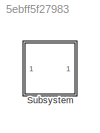
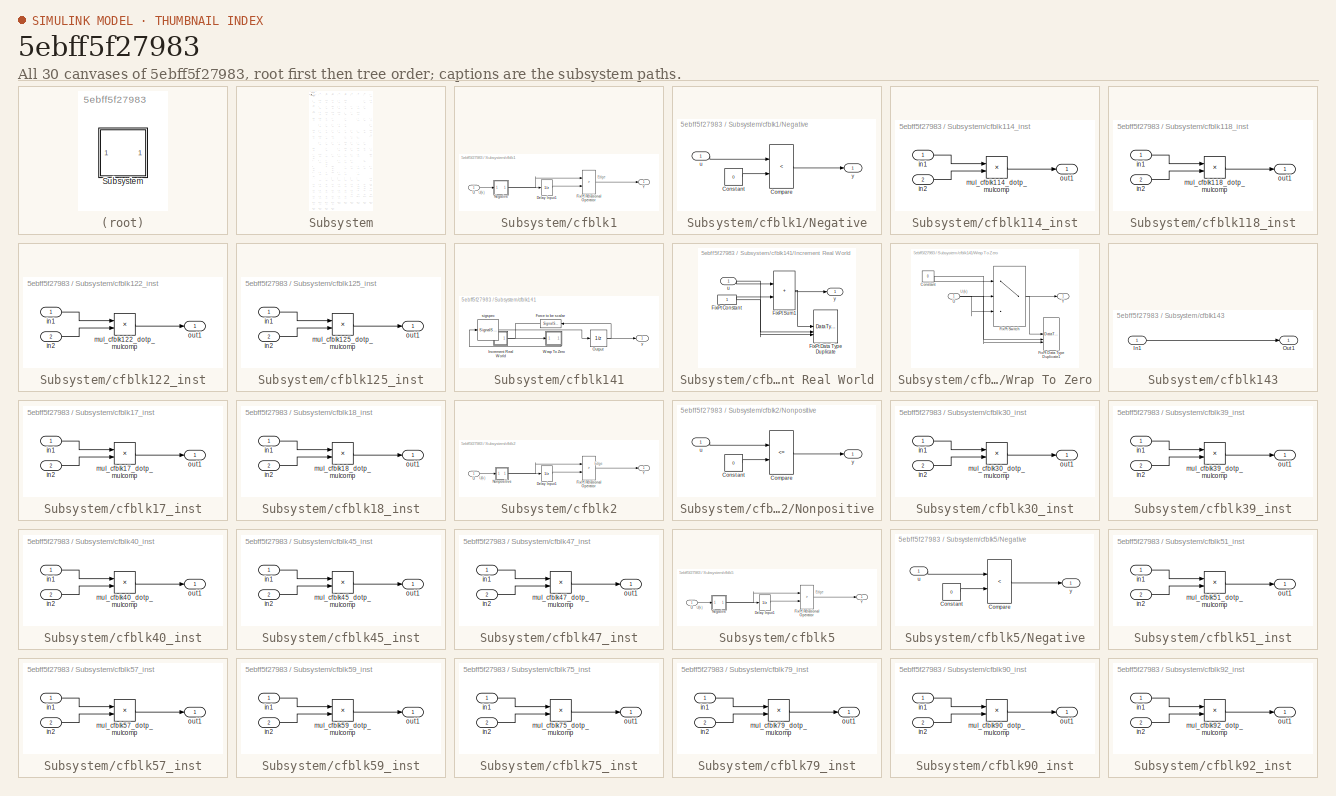
[diagram: thumbnail index - all 30 canvases of the model, root first then tree order]
MODEL slx_5ebff5f27983
KIND model
CONFIG AbsTol = auto
CONFIG EnableMultiTasking = off
CONFIG FixedStep = auto
CONFIG MaxStep = auto
CONFIG MinStep = auto
CONFIG RelTol = 1e-3
CONFIG SampleTimeConstraint = Unconstrained
CONFIG SolverName = VariableStepAuto
CONFIG StartTime = 0.0
CONFIG StopTime = 10.0
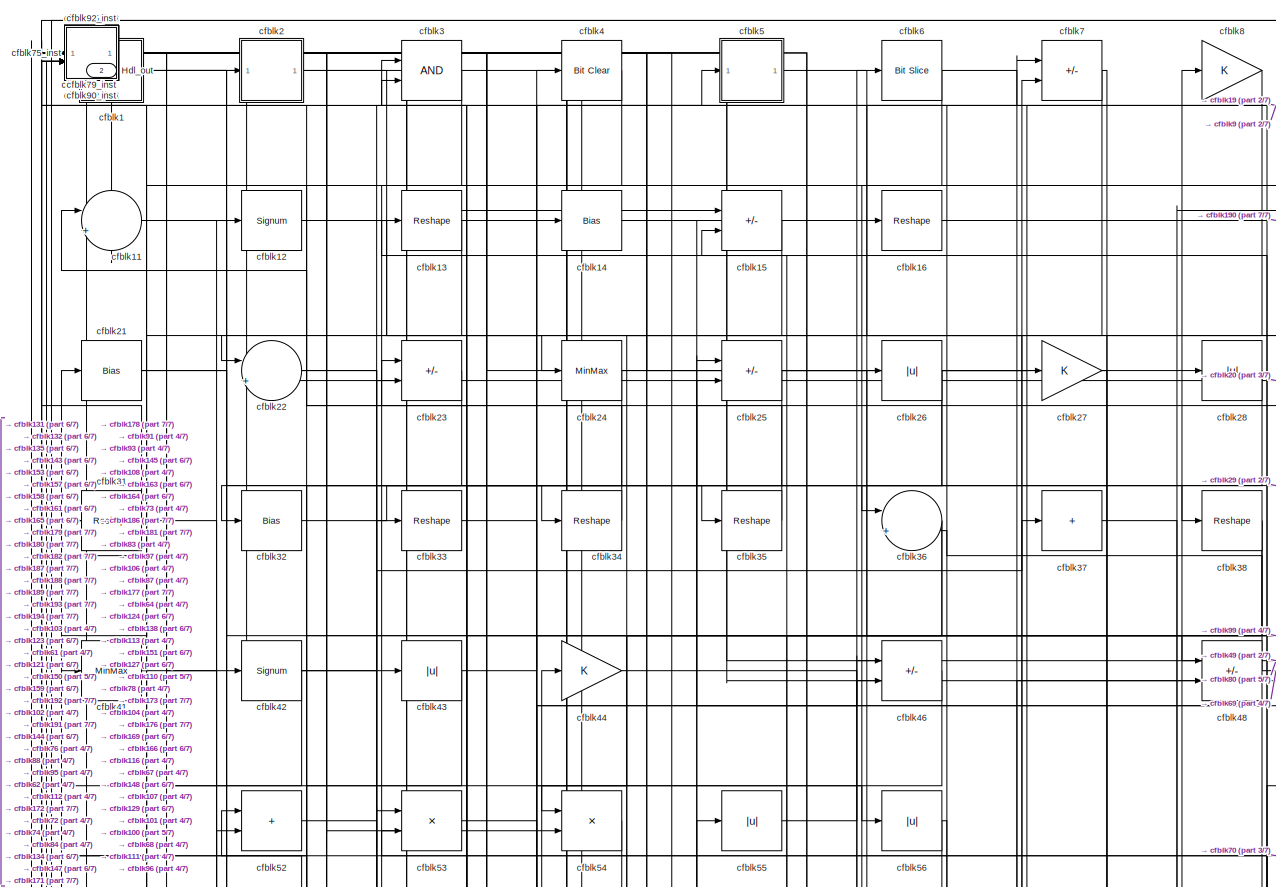
[diagram: Subsystem - part 1/7, full width, top band]
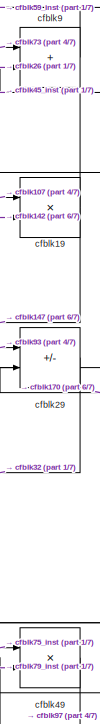
[diagram: Subsystem - part 2/7, top right region]
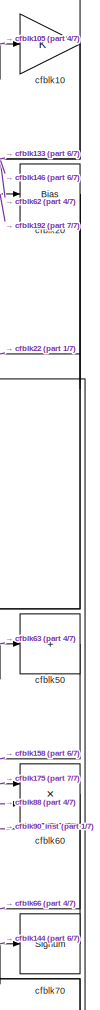
[diagram: Subsystem - part 3/7, top right region]
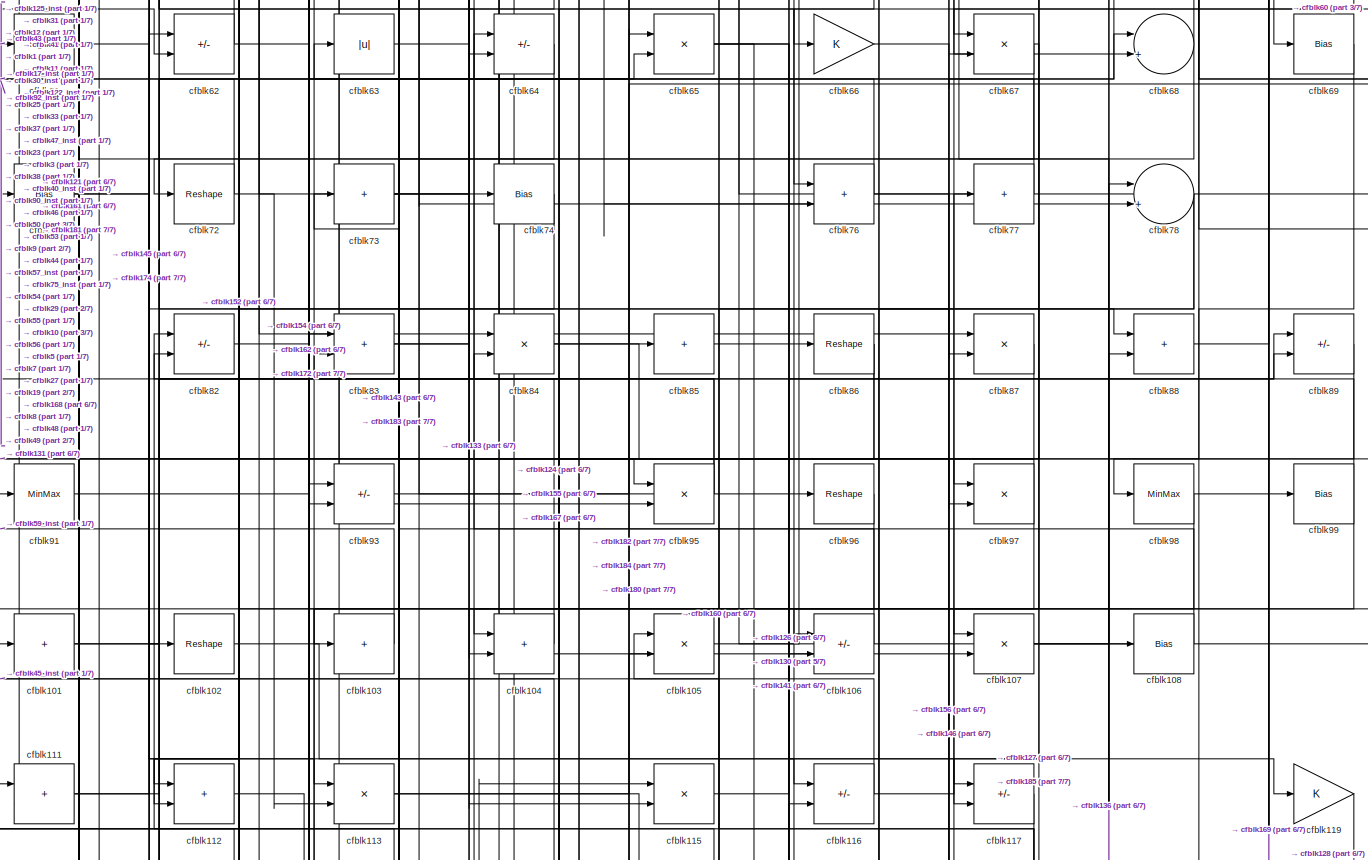
[diagram: Subsystem - part 4/7, full width, middle band]
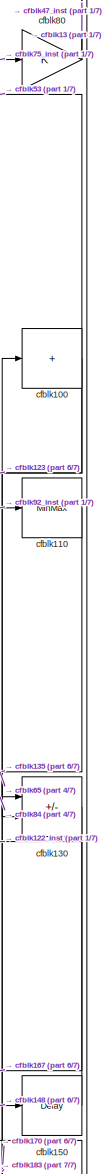
[diagram: Subsystem - part 5/7, middle right region]
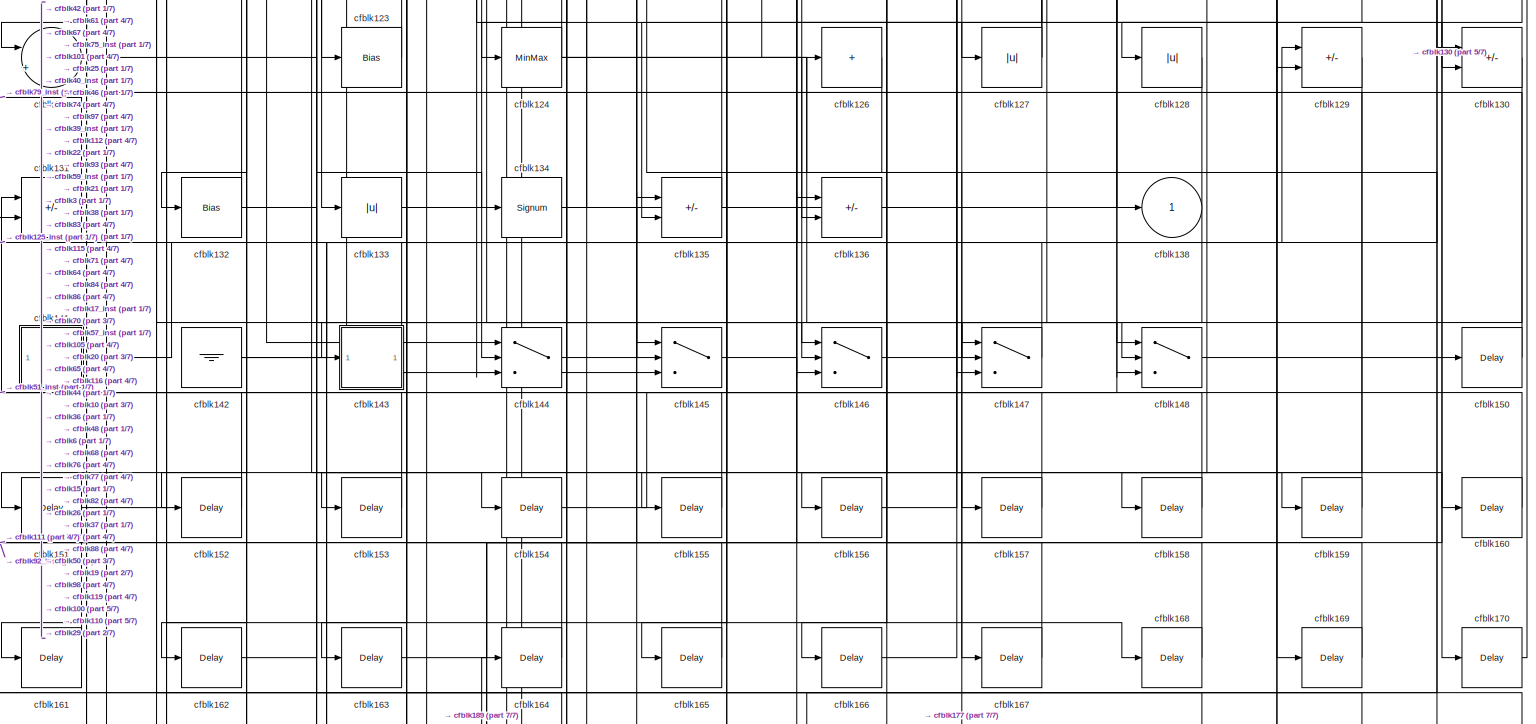
[diagram: Subsystem - part 6/7, full width, bottom band]
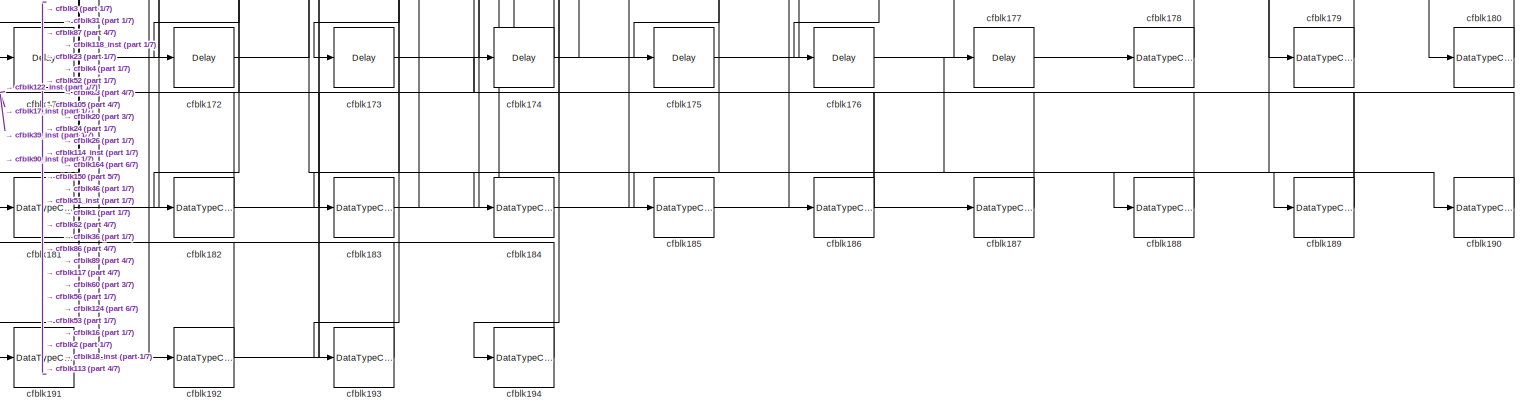
[diagram: Subsystem - part 7/7, full width, bottom band]
BLOCK [SubSystem] Subsystem
BLOCK [Outport] Subsystem/Hdl_out
  OutDataTypeStr = uint8
  Port = 2
  SampleTime = 1
BLOCK [SubSystem] Subsystem/cfblk1
BLOCK [UnitDelay] Subsystem/cfblk1/Delay Input1
  Description = Store in Global RAM
  DisableCoverage = on
  HasFrameUpgradeWarning = on
  InitialCondition = vinit
  SampleTime = -1
BLOCK [RelationalOperator] Subsystem/cfblk1/FixPt Relational Operator
  InputSameDT = off
  Operator = >
  OutDataTypeStr = fixdt(0, 8)
  ZeroCross = off
BLOCK [SubSystem] Subsystem/cfblk1/Negative
BLOCK [RelationalOperator] Subsystem/cfblk1/Negative/Compare
  Operator = <
  OutDataTypeStr = boolean
  ZeroCross = off
BLOCK [Constant] Subsystem/cfblk1/Negative/Constant
  DisableCoverage = on
  OutDataTypeStr = Inherit: Inherit via back propagation
  PreserveConstantTs = on
  SampleTime = -1
  Value = 0
BLOCK [Inport] Subsystem/cfblk1/Negative/u
  OutDataTypeStr = uint8
  SampleTime = 1
BLOCK [Outport] Subsystem/cfblk1/Negative/y
  SampleTime = 1
BLOCK [Inport] Subsystem/cfblk1/U
  OutDataTypeStr = uint8
  SampleTime = 1
BLOCK [Outport] Subsystem/cfblk1/Y
  SampleTime = 1
BLOCK [Gain] Subsystem/cfblk10
  OutDataTypeStr = uint8
BLOCK [Sum] Subsystem/cfblk100
  IconShape = rectangular
  Inputs = +
  OutDataTypeStr = uint8
BLOCK [Sum] Subsystem/cfblk101
  IconShape = rectangular
  Inputs = +
  OutDataTypeStr = uint8
BLOCK [Reshape] Subsystem/cfblk102
BLOCK [Sum] Subsystem/cfblk103
  IconShape = rectangular
  Inputs = +
  OutDataTypeStr = uint8
BLOCK [Sum] Subsystem/cfblk104
  IconShape = rectangular
  OutDataTypeStr = uint8
BLOCK [Product] Subsystem/cfblk105
  Inputs = */
  OutDataTypeStr = uint8
  RndMeth = Zero
  SaturateOnIntegerOverflow = on
BLOCK [Sum] Subsystem/cfblk106
  IconShape = rectangular
  Inputs = +-
  OutDataTypeStr = uint8
BLOCK [Product] Subsystem/cfblk107
  Inputs = */
  OutDataTypeStr = uint8
  RndMeth = Zero
  SaturateOnIntegerOverflow = on
BLOCK [Bias] Subsystem/cfblk108
  Bias = 0.0
  SaturateOnIntegerOverflow = off
BLOCK [Sum] Subsystem/cfblk11
  Inputs = |++
  OutDataTypeStr = uint8
BLOCK [MinMax] Subsystem/cfblk110
  OutDataTypeStr = uint8
BLOCK [Sum] Subsystem/cfblk111
  IconShape = rectangular
  OutDataTypeStr = uint8
BLOCK [Sum] Subsystem/cfblk112
  IconShape = rectangular
  OutDataTypeStr = uint8
BLOCK [Product] Subsystem/cfblk113
  Inputs = */
  OutDataTypeStr = uint8
  RndMeth = Zero
  SaturateOnIntegerOverflow = on
BLOCK [SubSystem] Subsystem/cfblk114_inst
BLOCK [Inport] Subsystem/cfblk114_inst/in1
  OutDataTypeStr = uint8
  SampleTime = 1
BLOCK [Inport] Subsystem/cfblk114_inst/in2
  OutDataTypeStr = uint8
  Port = 2
  SampleTime = 1
BLOCK [Product] Subsystem/cfblk114_inst/mul_cfblk114_dotp_mulcomp
  Inputs = **
  OutDataTypeStr = uint8
  SampleTime = 1
BLOCK [Outport] Subsystem/cfblk114_inst/out1
  OutDataTypeStr = uint8
  SampleTime = 1
BLOCK [Product] Subsystem/cfblk115
  Inputs = */
  OutDataTypeStr = uint8
  RndMeth = Zero
  SaturateOnIntegerOverflow = on
BLOCK [Sum] Subsystem/cfblk116
  IconShape = rectangular
  Inputs = +-
  OutDataTypeStr = uint8
BLOCK [Sum] Subsystem/cfblk117
  IconShape = rectangular
  Inputs = +-
  OutDataTypeStr = uint8
BLOCK [SubSystem] Subsystem/cfblk118_inst
BLOCK [Inport] Subsystem/cfblk118_inst/in1
  OutDataTypeStr = uint8
  SampleTime = 1
BLOCK [Inport] Subsystem/cfblk118_inst/in2
  OutDataTypeStr = uint8
  Port = 2
  SampleTime = 1
BLOCK [Product] Subsystem/cfblk118_inst/mul_cfblk118_dotp_mulcomp
  Inputs = **
  OutDataTypeStr = uint8
  SampleTime = 1
BLOCK [Outport] Subsystem/cfblk118_inst/out1
  OutDataTypeStr = uint8
  SampleTime = 1
BLOCK [Gain] Subsystem/cfblk119
  OutDataTypeStr = uint8
BLOCK [Signum] Subsystem/cfblk12
BLOCK [Sum] Subsystem/cfblk121
  Inputs = |++
  OutDataTypeStr = uint8
BLOCK [SubSystem] Subsystem/cfblk122_inst
BLOCK [Inport] Subsystem/cfblk122_inst/in1
  OutDataTypeStr = uint8
  SampleTime = 1
BLOCK [Inport] Subsystem/cfblk122_inst/in2
  OutDataTypeStr = uint8
  Port = 2
  SampleTime = 1
BLOCK [Product] Subsystem/cfblk122_inst/mul_cfblk122_dotp_mulcomp
  Inputs = **
  OutDataTypeStr = uint8
  SampleTime = 1
BLOCK [Outport] Subsystem/cfblk122_inst/out1
  OutDataTypeStr = uint8
  SampleTime = 1
BLOCK [Bias] Subsystem/cfblk123
  Bias = 0.0
  SaturateOnIntegerOverflow = off
BLOCK [MinMax] Subsystem/cfblk124
  OutDataTypeStr = uint8
BLOCK [SubSystem] Subsystem/cfblk125_inst
BLOCK [Inport] Subsystem/cfblk125_inst/in1
  OutDataTypeStr = uint8
  SampleTime = 1
BLOCK [Inport] Subsystem/cfblk125_inst/in2
  OutDataTypeStr = uint8
  Port = 2
  SampleTime = 1
BLOCK [Product] Subsystem/cfblk125_inst/mul_cfblk125_dotp_mulcomp
  Inputs = **
  OutDataTypeStr = uint8
  SampleTime = 1
BLOCK [Outport] Subsystem/cfblk125_inst/out1
  OutDataTypeStr = uint8
  SampleTime = 1
BLOCK [Sum] Subsystem/cfblk126
  IconShape = rectangular
  Inputs = +
  OutDataTypeStr = uint8
BLOCK [Abs] Subsystem/cfblk127
  OutDataTypeStr = uint8
  SaturateOnIntegerOverflow = off
BLOCK [Abs] Subsystem/cfblk128
  OutDataTypeStr = uint8
  SaturateOnIntegerOverflow = off
BLOCK [Sum] Subsystem/cfblk129
  IconShape = rectangular
  Inputs = +-
  OutDataTypeStr = uint8
BLOCK [Reshape] Subsystem/cfblk13
BLOCK [Sum] Subsystem/cfblk130
  IconShape = rectangular
  Inputs = +-
  OutDataTypeStr = uint8
BLOCK [Sum] Subsystem/cfblk131
  IconShape = rectangular
  Inputs = +-
  OutDataTypeStr = uint8
BLOCK [Bias] Subsystem/cfblk132
  Bias = 0.0
  SaturateOnIntegerOverflow = off
BLOCK [Abs] Subsystem/cfblk133
  OutDataTypeStr = uint8
  SaturateOnIntegerOverflow = off
BLOCK [Signum] Subsystem/cfblk134
BLOCK [Sum] Subsystem/cfblk135
  IconShape = rectangular
  Inputs = +-
  OutDataTypeStr = uint8
BLOCK [Sum] Subsystem/cfblk136
  IconShape = rectangular
  Inputs = +-
  OutDataTypeStr = uint8
BLOCK [Outport] Subsystem/cfblk138
  OutDataTypeStr = uint8
  SampleTime = 1
  VectorParamsAs1DForOutWhenUnconnected = off
BLOCK [Bias] Subsystem/cfblk14
  Bias = 0.0
  SaturateOnIntegerOverflow = off
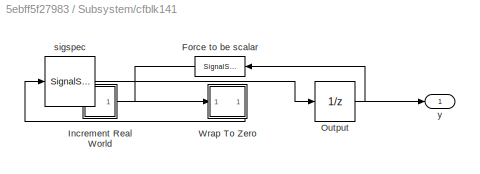
BLOCK [SubSystem] Subsystem/cfblk141
BLOCK [SignalSpecification] Subsystem/cfblk141/Force to be scalar
  Dimensions = 1
  DisableCoverage = on
BLOCK [SubSystem] Subsystem/cfblk141/Increment Real World
BLOCK [Constant] Subsystem/cfblk141/Increment Real World/FixPt Constant
  DisableCoverage = on
  OutDataTypeStr = Inherit: Inherit via back propagation
  SampleTime = -1
BLOCK [DataTypeDuplicate] Subsystem/cfblk141/Increment Real World/FixPt Data Type Duplicate
  DisableCoverage = on
  NumInputPorts = 3
BLOCK [Sum] Subsystem/cfblk141/Increment Real World/FixPt Sum1
  IconShape = rectangular
  InputSameDT = on
  LockScale = on
  OutDataTypeStr = Inherit: Inherit via back propagation
BLOCK [Inport] Subsystem/cfblk141/Increment Real World/u
  OutDataTypeStr = uint8
  SampleTime = 1
BLOCK [Outport] Subsystem/cfblk141/Increment Real World/y
  SampleTime = 1
BLOCK [UnitDelay] Subsystem/cfblk141/Output
  HasFrameUpgradeWarning = on
  InitialCondition = 0.0
  SampleTime = tsamp
BLOCK [SubSystem] Subsystem/cfblk141/Wrap To Zero
BLOCK [Constant] Subsystem/cfblk141/Wrap To Zero/Constant
  DisableCoverage = on
  OutDataTypeStr = Inherit: Inherit via back propagation
  SampleTime = -1
  Value = 0
BLOCK [DataTypeDuplicate] Subsystem/cfblk141/Wrap To Zero/FixPt Data Type Duplicate1
  DisableCoverage = on
  NumInputPorts = 3
BLOCK [Switch] Subsystem/cfblk141/Wrap To Zero/FixPt Switch
  Criteria = u2 > Threshold
  InputSameDT = off
  OutDataTypeStr = Inherit: Inherit via back propagation
  SaturateOnIntegerOverflow = off
  Threshold = Threshold
  ZeroCross = off
BLOCK [Inport] Subsystem/cfblk141/Wrap To Zero/U
  OutDataTypeStr = uint8
  SampleTime = 1
BLOCK [Outport] Subsystem/cfblk141/Wrap To Zero/Y
  SampleTime = 1
BLOCK [SignalSpecification] Subsystem/cfblk141/sigspec
  Dimensions = 1
  OutDataTypeStr = uint8
BLOCK [Outport] Subsystem/cfblk141/y
  SampleTime = 1
BLOCK [Ground] Subsystem/cfblk142
BLOCK [SubSystem] Subsystem/cfblk143
BLOCK [Inport] Subsystem/cfblk143/In1
  OutDataTypeStr = uint8
  PortDimensions = 1
  SampleTime = 1
BLOCK [Outport] Subsystem/cfblk143/Out1
  SampleTime = 1
BLOCK [Switch] Subsystem/cfblk144
  InputSameDT = off
  OutDataTypeStr = uint8
  SaturateOnIntegerOverflow = off
BLOCK [Switch] Subsystem/cfblk145
  InputSameDT = off
  OutDataTypeStr = uint8
  SaturateOnIntegerOverflow = off
BLOCK [Switch] Subsystem/cfblk146
  InputSameDT = off
  OutDataTypeStr = uint8
  SaturateOnIntegerOverflow = off
BLOCK [Switch] Subsystem/cfblk147
  InputSameDT = off
  OutDataTypeStr = uint8
  SaturateOnIntegerOverflow = off
BLOCK [Switch] Subsystem/cfblk148
  InputSameDT = off
  OutDataTypeStr = uint8
  SaturateOnIntegerOverflow = off
BLOCK [Sum] Subsystem/cfblk15
  IconShape = rectangular
  Inputs = +-
  OutDataTypeStr = uint8
BLOCK [Delay] Subsystem/cfblk150
  InputPortMap = u0
  SampleTime = 1
BLOCK [Delay] Subsystem/cfblk151
  InputPortMap = u0
  SampleTime = 1
BLOCK [Delay] Subsystem/cfblk152
  InputPortMap = u0
  SampleTime = 1
BLOCK [Delay] Subsystem/cfblk153
  InputPortMap = u0
  SampleTime = 1
BLOCK [Delay] Subsystem/cfblk154
  InputPortMap = u0
  SampleTime = 1
BLOCK [Delay] Subsystem/cfblk155
  InputPortMap = u0
  SampleTime = 1
BLOCK [Delay] Subsystem/cfblk156
  InputPortMap = u0
  SampleTime = 1
BLOCK [Delay] Subsystem/cfblk157
  InputPortMap = u0
  SampleTime = 1
BLOCK [Delay] Subsystem/cfblk158
  InputPortMap = u0
  SampleTime = 1
BLOCK [Delay] Subsystem/cfblk159
  InputPortMap = u0
  SampleTime = 1
BLOCK [Reshape] Subsystem/cfblk16
BLOCK [Delay] Subsystem/cfblk160
  InputPortMap = u0
  SampleTime = 1
BLOCK [Delay] Subsystem/cfblk161
  InputPortMap = u0
  SampleTime = 1
BLOCK [Delay] Subsystem/cfblk162
  InputPortMap = u0
  SampleTime = 1
BLOCK [Delay] Subsystem/cfblk163
  InputPortMap = u0
  SampleTime = 1
BLOCK [Delay] Subsystem/cfblk164
  InputPortMap = u0
  SampleTime = 1
BLOCK [Delay] Subsystem/cfblk165
  InputPortMap = u0
  SampleTime = 1
BLOCK [Delay] Subsystem/cfblk166
  InputPortMap = u0
  SampleTime = 1
BLOCK [Delay] Subsystem/cfblk167
  InputPortMap = u0
  SampleTime = 1
BLOCK [Delay] Subsystem/cfblk168
  InputPortMap = u0
  SampleTime = 1
BLOCK [Delay] Subsystem/cfblk169
  InputPortMap = u0
  SampleTime = 1
BLOCK [Delay] Subsystem/cfblk170
  InputPortMap = u0
  SampleTime = 1
BLOCK [Delay] Subsystem/cfblk171
  InputPortMap = u0
  SampleTime = 1
BLOCK [Delay] Subsystem/cfblk172
  InputPortMap = u0
  SampleTime = 1
BLOCK [Delay] Subsystem/cfblk173
  InputPortMap = u0
  SampleTime = 1
BLOCK [Delay] Subsystem/cfblk174
  InputPortMap = u0
  SampleTime = 1
BLOCK [Delay] Subsystem/cfblk175
  InputPortMap = u0
  SampleTime = 1
BLOCK [Delay] Subsystem/cfblk176
  InputPortMap = u0
  SampleTime = 1
BLOCK [Delay] Subsystem/cfblk177
  InputPortMap = u0
  SampleTime = 1
BLOCK [DataTypeConversion] Subsystem/cfblk178
  OutDataTypeStr = uint8
  RndMeth = Floor
  SaturateOnIntegerOverflow = off
BLOCK [DataTypeConversion] Subsystem/cfblk179
  OutDataTypeStr = uint8
  RndMeth = Floor
  SaturateOnIntegerOverflow = off
BLOCK [SubSystem] Subsystem/cfblk17_inst
BLOCK [Inport] Subsystem/cfblk17_inst/in1
  OutDataTypeStr = uint8
  SampleTime = 1
BLOCK [Inport] Subsystem/cfblk17_inst/in2
  OutDataTypeStr = uint8
  Port = 2
  SampleTime = 1
BLOCK [Product] Subsystem/cfblk17_inst/mul_cfblk17_dotp_mulcomp
  Inputs = **
  OutDataTypeStr = uint8
  SampleTime = 1
BLOCK [Outport] Subsystem/cfblk17_inst/out1
  OutDataTypeStr = uint8
  SampleTime = 1
BLOCK [DataTypeConversion] Subsystem/cfblk180
  OutDataTypeStr = uint8
  RndMeth = Floor
  SaturateOnIntegerOverflow = off
BLOCK [DataTypeConversion] Subsystem/cfblk181
  OutDataTypeStr = uint8
  RndMeth = Floor
  SaturateOnIntegerOverflow = off
BLOCK [DataTypeConversion] Subsystem/cfblk182
  OutDataTypeStr = uint8
  RndMeth = Floor
  SaturateOnIntegerOverflow = off
BLOCK [DataTypeConversion] Subsystem/cfblk183
  OutDataTypeStr = uint8
  RndMeth = Floor
  SaturateOnIntegerOverflow = off
BLOCK [DataTypeConversion] Subsystem/cfblk184
  OutDataTypeStr = uint8
  RndMeth = Floor
  SaturateOnIntegerOverflow = off
BLOCK [DataTypeConversion] Subsystem/cfblk185
  OutDataTypeStr = uint8
  RndMeth = Floor
  SaturateOnIntegerOverflow = off
BLOCK [DataTypeConversion] Subsystem/cfblk186
  OutDataTypeStr = uint8
  RndMeth = Floor
  SaturateOnIntegerOverflow = off
BLOCK [DataTypeConversion] Subsystem/cfblk187
  OutDataTypeStr = uint8
  RndMeth = Floor
  SaturateOnIntegerOverflow = off
BLOCK [DataTypeConversion] Subsystem/cfblk188
  OutDataTypeStr = uint8
  RndMeth = Floor
  SaturateOnIntegerOverflow = off
BLOCK [DataTypeConversion] Subsystem/cfblk189
  OutDataTypeStr = uint8
  RndMeth = Floor
  SaturateOnIntegerOverflow = off
BLOCK [SubSystem] Subsystem/cfblk18_inst
BLOCK [Inport] Subsystem/cfblk18_inst/in1
  OutDataTypeStr = uint8
  SampleTime = 1
BLOCK [Inport] Subsystem/cfblk18_inst/in2
  OutDataTypeStr = uint8
  Port = 2
  SampleTime = 1
BLOCK [Product] Subsystem/cfblk18_inst/mul_cfblk18_dotp_mulcomp
  Inputs = **
  OutDataTypeStr = uint8
  SampleTime = 1
BLOCK [Outport] Subsystem/cfblk18_inst/out1
  OutDataTypeStr = uint8
  SampleTime = 1
BLOCK [Product] Subsystem/cfblk19
  Inputs = */
  OutDataTypeStr = uint8
  RndMeth = Zero
  SaturateOnIntegerOverflow = on
BLOCK [DataTypeConversion] Subsystem/cfblk190
  OutDataTypeStr = uint8
  RndMeth = Floor
  SaturateOnIntegerOverflow = off
BLOCK [DataTypeConversion] Subsystem/cfblk191
  OutDataTypeStr = uint8
  RndMeth = Floor
  SaturateOnIntegerOverflow = off
BLOCK [DataTypeConversion] Subsystem/cfblk192
  OutDataTypeStr = uint8
  RndMeth = Floor
  SaturateOnIntegerOverflow = off
BLOCK [DataTypeConversion] Subsystem/cfblk193
  OutDataTypeStr = uint8
  RndMeth = Floor
  SaturateOnIntegerOverflow = off
BLOCK [DataTypeConversion] Subsystem/cfblk194
  OutDataTypeStr = uint8
  RndMeth = Floor
  SaturateOnIntegerOverflow = off
BLOCK [SubSystem] Subsystem/cfblk2
BLOCK [UnitDelay] Subsystem/cfblk2/Delay Input1
  Description = Store in Global RAM
  DisableCoverage = on
  HasFrameUpgradeWarning = on
  InitialCondition = vinit
  SampleTime = -1
BLOCK [RelationalOperator] Subsystem/cfblk2/FixPt Relational Operator
  InputSameDT = off
  Operator = >
  OutDataTypeStr = fixdt(0, 8)
  ZeroCross = off
BLOCK [SubSystem] Subsystem/cfblk2/Nonpositive
BLOCK [RelationalOperator] Subsystem/cfblk2/Nonpositive/Compare
  Operator = <=
  OutDataTypeStr = boolean
  ZeroCross = off
BLOCK [Constant] Subsystem/cfblk2/Nonpositive/Constant
  DisableCoverage = on
  OutDataTypeStr = Inherit: Inherit via back propagation
  PreserveConstantTs = on
  SampleTime = -1
  Value = 0
BLOCK [Inport] Subsystem/cfblk2/Nonpositive/u
  OutDataTypeStr = uint8
  SampleTime = 1
BLOCK [Outport] Subsystem/cfblk2/Nonpositive/y
  SampleTime = 1
BLOCK [Inport] Subsystem/cfblk2/U
  OutDataTypeStr = uint8
  SampleTime = 1
BLOCK [Outport] Subsystem/cfblk2/Y
  SampleTime = 1
BLOCK [Bias] Subsystem/cfblk20
  Bias = 0.0
  SaturateOnIntegerOverflow = off
BLOCK [Bias] Subsystem/cfblk21
  Bias = 0.0
  SaturateOnIntegerOverflow = off
BLOCK [Sum] Subsystem/cfblk22
  Inputs = |++
  OutDataTypeStr = uint8
BLOCK [Sum] Subsystem/cfblk23
  IconShape = rectangular
  Inputs = +-
  OutDataTypeStr = uint8
BLOCK [MinMax] Subsystem/cfblk24
  OutDataTypeStr = uint8
BLOCK [Sum] Subsystem/cfblk25
  IconShape = rectangular
  Inputs = +-
  OutDataTypeStr = uint8
BLOCK [Abs] Subsystem/cfblk26
  OutDataTypeStr = uint8
  SaturateOnIntegerOverflow = off
BLOCK [Gain] Subsystem/cfblk27
  OutDataTypeStr = uint8
BLOCK [Abs] Subsystem/cfblk28
  OutDataTypeStr = uint8
  SaturateOnIntegerOverflow = off
BLOCK [Sum] Subsystem/cfblk29
  IconShape = rectangular
  Inputs = +-
  OutDataTypeStr = uint8
BLOCK [Logic] Subsystem/cfblk3
  AllPortsSameDT = off
  OutDataTypeStr = boolean
BLOCK [SubSystem] Subsystem/cfblk30_inst
BLOCK [Inport] Subsystem/cfblk30_inst/in1
  OutDataTypeStr = uint8
  SampleTime = 1
BLOCK [Inport] Subsystem/cfblk30_inst/in2
  OutDataTypeStr = uint8
  Port = 2
  SampleTime = 1
BLOCK [Product] Subsystem/cfblk30_inst/mul_cfblk30_dotp_mulcomp
  Inputs = **
  OutDataTypeStr = uint8
  SampleTime = 1
BLOCK [Outport] Subsystem/cfblk30_inst/out1
  OutDataTypeStr = uint8
  SampleTime = 1
BLOCK [Reshape] Subsystem/cfblk31
BLOCK [Bias] Subsystem/cfblk32
  Bias = 0.0
  SaturateOnIntegerOverflow = off
BLOCK [Reshape] Subsystem/cfblk33
BLOCK [Reshape] Subsystem/cfblk34
BLOCK [Reshape] Subsystem/cfblk35
BLOCK [Sum] Subsystem/cfblk36
  Inputs = |++
  OutDataTypeStr = uint8
BLOCK [Sum] Subsystem/cfblk37
  IconShape = rectangular
  Inputs = +
  OutDataTypeStr = uint8
BLOCK [Reshape] Subsystem/cfblk38
BLOCK [SubSystem] Subsystem/cfblk39_inst
BLOCK [Inport] Subsystem/cfblk39_inst/in1
  OutDataTypeStr = uint8
  SampleTime = 1
BLOCK [Inport] Subsystem/cfblk39_inst/in2
  OutDataTypeStr = uint8
  Port = 2
  SampleTime = 1
BLOCK [Product] Subsystem/cfblk39_inst/mul_cfblk39_dotp_mulcomp
  Inputs = **
  OutDataTypeStr = uint8
  SampleTime = 1
BLOCK [Outport] Subsystem/cfblk39_inst/out1
  OutDataTypeStr = uint8
  SampleTime = 1
BLOCK [Reference] Subsystem/cfblk4  REF=simulink/Logic and Bit
Operations/Bit Clear
  LibrarySourceBlock = hdlsllib/Logic and Bit\nOperations/Bit Clear
  SourceBlock = simulink/Logic and Bit\nOperations/Bit Clear
  SourceType = Bit Clear
BLOCK [SubSystem] Subsystem/cfblk40_inst
BLOCK [Inport] Subsystem/cfblk40_inst/in1
  OutDataTypeStr = uint8
  SampleTime = 1
BLOCK [Inport] Subsystem/cfblk40_inst/in2
  OutDataTypeStr = uint8
  Port = 2
  SampleTime = 1
BLOCK [Product] Subsystem/cfblk40_inst/mul_cfblk40_dotp_mulcomp
  Inputs = **
  OutDataTypeStr = uint8
  SampleTime = 1
BLOCK [Outport] Subsystem/cfblk40_inst/out1
  OutDataTypeStr = uint8
  SampleTime = 1
BLOCK [MinMax] Subsystem/cfblk41
  OutDataTypeStr = uint8
BLOCK [Signum] Subsystem/cfblk42
BLOCK [Abs] Subsystem/cfblk43
  OutDataTypeStr = uint8
  SaturateOnIntegerOverflow = off
BLOCK [Gain] Subsystem/cfblk44
  OutDataTypeStr = uint8
BLOCK [SubSystem] Subsystem/cfblk45_inst
BLOCK [Inport] Subsystem/cfblk45_inst/in1
  OutDataTypeStr = uint8
  SampleTime = 1
BLOCK [Inport] Subsystem/cfblk45_inst/in2
  OutDataTypeStr = uint8
  Port = 2
  SampleTime = 1
BLOCK [Product] Subsystem/cfblk45_inst/mul_cfblk45_dotp_mulcomp
  Inputs = **
  OutDataTypeStr = uint8
  SampleTime = 1
BLOCK [Outport] Subsystem/cfblk45_inst/out1
  OutDataTypeStr = uint8
  SampleTime = 1
BLOCK [Sum] Subsystem/cfblk46
  IconShape = rectangular
  Inputs = +-
  OutDataTypeStr = uint8
BLOCK [SubSystem] Subsystem/cfblk47_inst
BLOCK [Inport] Subsystem/cfblk47_inst/in1
  OutDataTypeStr = uint8
  SampleTime = 1
BLOCK [Inport] Subsystem/cfblk47_inst/in2
  OutDataTypeStr = uint8
  Port = 2
  SampleTime = 1
BLOCK [Product] Subsystem/cfblk47_inst/mul_cfblk47_dotp_mulcomp
  Inputs = **
  OutDataTypeStr = uint8
  SampleTime = 1
BLOCK [Outport] Subsystem/cfblk47_inst/out1
  OutDataTypeStr = uint8
  SampleTime = 1
BLOCK [Sum] Subsystem/cfblk48
  IconShape = rectangular
  Inputs = +-
  OutDataTypeStr = uint8
BLOCK [Product] Subsystem/cfblk49
  Inputs = */
  OutDataTypeStr = uint8
  RndMeth = Zero
  SaturateOnIntegerOverflow = on
BLOCK [SubSystem] Subsystem/cfblk5
BLOCK [UnitDelay] Subsystem/cfblk5/Delay Input1
  Description = Store in Global RAM
  DisableCoverage = on
  HasFrameUpgradeWarning = on
  InitialCondition = vinit
  SampleTime = -1
BLOCK [RelationalOperator] Subsystem/cfblk5/FixPt Relational Operator
  InputSameDT = off
  Operator = >
  OutDataTypeStr = fixdt(0, 8)
  ZeroCross = off
BLOCK [SubSystem] Subsystem/cfblk5/Negative
BLOCK [RelationalOperator] Subsystem/cfblk5/Negative/Compare
  Operator = <
  OutDataTypeStr = boolean
  ZeroCross = off
BLOCK [Constant] Subsystem/cfblk5/Negative/Constant
  DisableCoverage = on
  OutDataTypeStr = Inherit: Inherit via back propagation
  PreserveConstantTs = on
  SampleTime = -1
  Value = 0
BLOCK [Inport] Subsystem/cfblk5/Negative/u
  OutDataTypeStr = uint8
  SampleTime = 1
BLOCK [Outport] Subsystem/cfblk5/Negative/y
  SampleTime = 1
BLOCK [Inport] Subsystem/cfblk5/U
  OutDataTypeStr = uint8
  SampleTime = 1
BLOCK [Outport] Subsystem/cfblk5/Y
  SampleTime = 1
BLOCK [Sum] Subsystem/cfblk50
  IconShape = rectangular
  Inputs = +
  OutDataTypeStr = uint8
BLOCK [SubSystem] Subsystem/cfblk51_inst
BLOCK [Inport] Subsystem/cfblk51_inst/in1
  OutDataTypeStr = uint8
  SampleTime = 1
BLOCK [Inport] Subsystem/cfblk51_inst/in2
  OutDataTypeStr = uint8
  Port = 2
  SampleTime = 1
BLOCK [Product] Subsystem/cfblk51_inst/mul_cfblk51_dotp_mulcomp
  Inputs = **
  OutDataTypeStr = uint8
  SampleTime = 1
BLOCK [Outport] Subsystem/cfblk51_inst/out1
  OutDataTypeStr = uint8
  SampleTime = 1
BLOCK [Sum] Subsystem/cfblk52
  IconShape = rectangular
  OutDataTypeStr = uint8
BLOCK [Product] Subsystem/cfblk53
  Inputs = */
  OutDataTypeStr = uint8
  RndMeth = Zero
  SaturateOnIntegerOverflow = on
BLOCK [Product] Subsystem/cfblk54
  Inputs = */
  OutDataTypeStr = uint8
  RndMeth = Zero
  SaturateOnIntegerOverflow = on
BLOCK [Abs] Subsystem/cfblk55
  OutDataTypeStr = uint8
  SaturateOnIntegerOverflow = off
BLOCK [Abs] Subsystem/cfblk56
  OutDataTypeStr = uint8
  SaturateOnIntegerOverflow = off
BLOCK [SubSystem] Subsystem/cfblk57_inst
BLOCK [Inport] Subsystem/cfblk57_inst/in1
  OutDataTypeStr = uint8
  SampleTime = 1
BLOCK [Inport] Subsystem/cfblk57_inst/in2
  OutDataTypeStr = uint8
  Port = 2
  SampleTime = 1
BLOCK [Product] Subsystem/cfblk57_inst/mul_cfblk57_dotp_mulcomp
  Inputs = **
  OutDataTypeStr = uint8
  SampleTime = 1
BLOCK [Outport] Subsystem/cfblk57_inst/out1
  OutDataTypeStr = uint8
  SampleTime = 1
BLOCK [SubSystem] Subsystem/cfblk59_inst
BLOCK [Inport] Subsystem/cfblk59_inst/in1
  OutDataTypeStr = uint8
  SampleTime = 1
BLOCK [Inport] Subsystem/cfblk59_inst/in2
  OutDataTypeStr = uint8
  Port = 2
  SampleTime = 1
BLOCK [Product] Subsystem/cfblk59_inst/mul_cfblk59_dotp_mulcomp
  Inputs = **
  OutDataTypeStr = uint8
  SampleTime = 1
BLOCK [Outport] Subsystem/cfblk59_inst/out1
  OutDataTypeStr = uint8
  SampleTime = 1
BLOCK [Reference] Subsystem/cfblk6  REF=hdlsllib/Logic and Bit
Operations/Bit Slice
  SourceBlock = hdlsllib/Logic and Bit\nOperations/Bit Slice
  SourceType = Bit Slice
BLOCK [Product] Subsystem/cfblk60
  Inputs = */
  OutDataTypeStr = uint8
  RndMeth = Zero
  SaturateOnIntegerOverflow = on
BLOCK [Signum] Subsystem/cfblk61
BLOCK [Sum] Subsystem/cfblk62
  IconShape = rectangular
  Inputs = +-
  OutDataTypeStr = uint8
BLOCK [Abs] Subsystem/cfblk63
  OutDataTypeStr = uint8
  SaturateOnIntegerOverflow = off
BLOCK [Sum] Subsystem/cfblk64
  IconShape = rectangular
  Inputs = +-
  OutDataTypeStr = uint8
BLOCK [Product] Subsystem/cfblk65
  Inputs = */
  OutDataTypeStr = uint8
  RndMeth = Zero
  SaturateOnIntegerOverflow = on
BLOCK [Gain] Subsystem/cfblk66
  OutDataTypeStr = uint8
BLOCK [Product] Subsystem/cfblk67
  Inputs = */
  OutDataTypeStr = uint8
  RndMeth = Zero
  SaturateOnIntegerOverflow = on
BLOCK [Sum] Subsystem/cfblk68
  Inputs = |++
  OutDataTypeStr = uint8
BLOCK [Bias] Subsystem/cfblk69
  Bias = 0.0
  SaturateOnIntegerOverflow = off
BLOCK [Sum] Subsystem/cfblk7
  IconShape = rectangular
  Inputs = +-
  OutDataTypeStr = uint8
BLOCK [Signum] Subsystem/cfblk70
BLOCK [Bias] Subsystem/cfblk71
  Bias = 0.0
  SaturateOnIntegerOverflow = off
BLOCK [Reshape] Subsystem/cfblk72
BLOCK [Sum] Subsystem/cfblk73
  IconShape = rectangular
  Inputs = +
  OutDataTypeStr = uint8
BLOCK [Bias] Subsystem/cfblk74
  Bias = 0.0
  SaturateOnIntegerOverflow = off
BLOCK [SubSystem] Subsystem/cfblk75_inst
BLOCK [Inport] Subsystem/cfblk75_inst/in1
  OutDataTypeStr = uint8
  SampleTime = 1
BLOCK [Inport] Subsystem/cfblk75_inst/in2
  OutDataTypeStr = uint8
  Port = 2
  SampleTime = 1
BLOCK [Product] Subsystem/cfblk75_inst/mul_cfblk75_dotp_mulcomp
  Inputs = **
  OutDataTypeStr = uint8
  SampleTime = 1
BLOCK [Outport] Subsystem/cfblk75_inst/out1
  OutDataTypeStr = uint8
  SampleTime = 1
BLOCK [Sum] Subsystem/cfblk76
  IconShape = rectangular
  OutDataTypeStr = uint8
BLOCK [Sum] Subsystem/cfblk77
  IconShape = rectangular
  Inputs = +
  OutDataTypeStr = uint8
BLOCK [Sum] Subsystem/cfblk78
  Inputs = |++
  OutDataTypeStr = uint8
BLOCK [SubSystem] Subsystem/cfblk79_inst
BLOCK [Inport] Subsystem/cfblk79_inst/in1
  OutDataTypeStr = uint8
  SampleTime = 1
BLOCK [Inport] Subsystem/cfblk79_inst/in2
  OutDataTypeStr = uint8
  Port = 2
  SampleTime = 1
BLOCK [Product] Subsystem/cfblk79_inst/mul_cfblk79_dotp_mulcomp
  Inputs = **
  OutDataTypeStr = uint8
  SampleTime = 1
BLOCK [Outport] Subsystem/cfblk79_inst/out1
  OutDataTypeStr = uint8
  SampleTime = 1
BLOCK [Gain] Subsystem/cfblk8
  OutDataTypeStr = uint8
BLOCK [Gain] Subsystem/cfblk80
  OutDataTypeStr = uint8
BLOCK [Sum] Subsystem/cfblk82
  IconShape = rectangular
  Inputs = +-
  OutDataTypeStr = uint8
BLOCK [Sum] Subsystem/cfblk83
  IconShape = rectangular
  OutDataTypeStr = uint8
BLOCK [Product] Subsystem/cfblk84
  Inputs = */
  OutDataTypeStr = uint8
  RndMeth = Zero
  SaturateOnIntegerOverflow = on
BLOCK [Sum] Subsystem/cfblk85
  IconShape = rectangular
  Inputs = +
  OutDataTypeStr = uint8
BLOCK [Reshape] Subsystem/cfblk86
BLOCK [Product] Subsystem/cfblk87
  Inputs = */
  OutDataTypeStr = uint8
  RndMeth = Zero
  SaturateOnIntegerOverflow = on
BLOCK [Sum] Subsystem/cfblk88
  IconShape = rectangular
  OutDataTypeStr = uint8
BLOCK [Sum] Subsystem/cfblk89
  IconShape = rectangular
  Inputs = +-
  OutDataTypeStr = uint8
BLOCK [Sum] Subsystem/cfblk9
  IconShape = rectangular
  OutDataTypeStr = uint8
BLOCK [SubSystem] Subsystem/cfblk90_inst
BLOCK [Inport] Subsystem/cfblk90_inst/in1
  OutDataTypeStr = uint8
  SampleTime = 1
BLOCK [Inport] Subsystem/cfblk90_inst/in2
  OutDataTypeStr = uint8
  Port = 2
  SampleTime = 1
BLOCK [Product] Subsystem/cfblk90_inst/mul_cfblk90_dotp_mulcomp
  Inputs = **
  OutDataTypeStr = uint8
  SampleTime = 1
BLOCK [Outport] Subsystem/cfblk90_inst/out1
  OutDataTypeStr = uint8
  SampleTime = 1
BLOCK [MinMax] Subsystem/cfblk91
  OutDataTypeStr = uint8
BLOCK [SubSystem] Subsystem/cfblk92_inst
BLOCK [Inport] Subsystem/cfblk92_inst/in1
  OutDataTypeStr = uint8
  SampleTime = 1
BLOCK [Inport] Subsystem/cfblk92_inst/in2
  OutDataTypeStr = uint8
  Port = 2
  SampleTime = 1
BLOCK [Product] Subsystem/cfblk92_inst/mul_cfblk92_dotp_mulcomp
  Inputs = **
  OutDataTypeStr = uint8
  SampleTime = 1
BLOCK [Outport] Subsystem/cfblk92_inst/out1
  OutDataTypeStr = uint8
  SampleTime = 1
BLOCK [Sum] Subsystem/cfblk93
  IconShape = rectangular
  Inputs = +-
  OutDataTypeStr = uint8
BLOCK [Product] Subsystem/cfblk95
  Inputs = */
  OutDataTypeStr = uint8
  RndMeth = Zero
  SaturateOnIntegerOverflow = on
BLOCK [Reshape] Subsystem/cfblk96
BLOCK [Product] Subsystem/cfblk97
  Inputs = */
  OutDataTypeStr = uint8
  RndMeth = Zero
  SaturateOnIntegerOverflow = on
BLOCK [MinMax] Subsystem/cfblk98
  OutDataTypeStr = uint8
BLOCK [Bias] Subsystem/cfblk99
  Bias = 0.0
  SaturateOnIntegerOverflow = off
ANNOTATION Subsystem/cfblk1: Edge
ANNOTATION Subsystem/cfblk1: U(k)
ANNOTATION Subsystem/cfblk141/Wrap To Zero: U(k)
ANNOTATION Subsystem/cfblk2: Edge
ANNOTATION Subsystem/cfblk2: U(k)
ANNOTATION Subsystem/cfblk5: Edge
ANNOTATION Subsystem/cfblk5: U(k)
NET Subsystem/cfblk100:1 -> Subsystem/cfblk123:1, Subsystem/cfblk170:1, Subsystem/cfblk53:2
NET Subsystem/cfblk101:1 -> Subsystem/cfblk168:1, Subsystem/cfblk8:1
LINE Subsystem/cfblk102:1 -> Subsystem/cfblk116:1
LINE Subsystem/cfblk103:1 -> Subsystem/cfblk59_inst:2
LINE Subsystem/cfblk104:1 -> Subsystem/cfblk83:2
LINE Subsystem/cfblk105:1 -> Subsystem/cfblk10:1
LINE Subsystem/cfblk106:1 -> Subsystem/cfblk44:1
NET Subsystem/cfblk107:1 -> Subsystem/cfblk108:1, Subsystem/cfblk19:1
LINE Subsystem/cfblk108:1 -> Subsystem/cfblk23:1
NET Subsystem/cfblk10:1 -> Subsystem/cfblk133:1, Subsystem/cfblk146:2, Subsystem/cfblk62:2
LINE Subsystem/cfblk110:1 -> Subsystem/cfblk135:2
NET Subsystem/cfblk111:1 -> Subsystem/cfblk12:1, Subsystem/cfblk65:2
LINE Subsystem/cfblk112:1 -> Subsystem/cfblk154:1
NET Subsystem/cfblk113:1 -> Subsystem/cfblk180:1, Subsystem/cfblk55:1
LINE Subsystem/cfblk114_inst/in1:1 -> Subsystem/cfblk114_inst/mul_cfblk114_dotp_mulcomp:1
LINE Subsystem/cfblk114_inst/in2:1 -> Subsystem/cfblk114_inst/mul_cfblk114_dotp_mulcomp:2
LINE Subsystem/cfblk114_inst/mul_cfblk114_dotp_mulcomp:1 -> Subsystem/cfblk114_inst/out1:1
LINE Subsystem/cfblk114_inst:1 -> Subsystem/cfblk186:1
LINE Subsystem/cfblk115:1 -> Subsystem/cfblk106:2
NET Subsystem/cfblk116:1 -> Subsystem/cfblk45_inst:2, Subsystem/cfblk7:2
LINE Subsystem/cfblk117:1 -> Subsystem/cfblk185:1
LINE Subsystem/cfblk118_inst/in1:1 -> Subsystem/cfblk118_inst/mul_cfblk118_dotp_mulcomp:1
LINE Subsystem/cfblk118_inst/in2:1 -> Subsystem/cfblk118_inst/mul_cfblk118_dotp_mulcomp:2
LINE Subsystem/cfblk118_inst/mul_cfblk118_dotp_mulcomp:1 -> Subsystem/cfblk118_inst/out1:1
LINE Subsystem/cfblk118_inst:1 -> Subsystem/cfblk192:1
LINE Subsystem/cfblk119:1 -> Subsystem/cfblk128:1
NET Subsystem/cfblk11:1 -> Subsystem/cfblk144:2, Subsystem/cfblk76:1
LINE Subsystem/cfblk121:1 -> Subsystem/cfblk146:1
LINE Subsystem/cfblk122_inst/in1:1 -> Subsystem/cfblk122_inst/mul_cfblk122_dotp_mulcomp:1
LINE Subsystem/cfblk122_inst/in2:1 -> Subsystem/cfblk122_inst/mul_cfblk122_dotp_mulcomp:2
LINE Subsystem/cfblk122_inst/mul_cfblk122_dotp_mulcomp:1 -> Subsystem/cfblk122_inst/out1:1
LINE Subsystem/cfblk122_inst:1 -> Subsystem/cfblk84:1
LINE Subsystem/cfblk123:1 -> Subsystem/cfblk21:1
NET Subsystem/cfblk124:1 -> Subsystem/cfblk136:2, Subsystem/cfblk148:2, Subsystem/cfblk177:1, Subsystem/cfblk71:1
LINE Subsystem/cfblk125_inst/in1:1 -> Subsystem/cfblk125_inst/mul_cfblk125_dotp_mulcomp:1
LINE Subsystem/cfblk125_inst/in2:1 -> Subsystem/cfblk125_inst/mul_cfblk125_dotp_mulcomp:2
LINE Subsystem/cfblk125_inst/mul_cfblk125_dotp_mulcomp:1 -> Subsystem/cfblk125_inst/out1:1
NET Subsystem/cfblk125_inst:1 -> Subsystem/cfblk111:2, Subsystem/cfblk11:2, Subsystem/cfblk74:1
LINE Subsystem/cfblk126:1 -> Subsystem/cfblk165:1
NET Subsystem/cfblk127:1 -> Subsystem/cfblk15:2, Subsystem/cfblk82:1
LINE Subsystem/cfblk128:1 -> Subsystem/cfblk166:1
LINE Subsystem/cfblk129:1 -> Subsystem/cfblk151:1
LINE Subsystem/cfblk12:1 -> Subsystem/cfblk24:1
LINE Subsystem/cfblk130:1 -> Subsystem/cfblk167:1
LINE Subsystem/cfblk131:1 -> Subsystem/cfblk79_inst:1
NET Subsystem/cfblk132:1 -> Subsystem/cfblk159:1, Subsystem/cfblk40_inst:2
NET Subsystem/cfblk133:1 -> Subsystem/cfblk115:1, Subsystem/cfblk146:3
LINE Subsystem/cfblk134:1 -> Subsystem/cfblk145:1
LINE Subsystem/cfblk135:1 -> Subsystem/cfblk57_inst:1
LINE Subsystem/cfblk136:1 -> Subsystem/cfblk78:1
LINE Subsystem/cfblk13:1 -> Subsystem/cfblk41:1
LINE Subsystem/cfblk141:1 -> Subsystem/cfblk116:2
NET Subsystem/cfblk142:1 -> Subsystem/cfblk129:1, Subsystem/cfblk19:2
LINE Subsystem/cfblk143/In1:1 -> Subsystem/cfblk143/Out1:1
LINE Subsystem/cfblk143:1 -> Subsystem/cfblk125_inst:1
LINE Subsystem/cfblk144:1 -> Subsystem/cfblk70:1
LINE Subsystem/cfblk145:1 -> Subsystem/cfblk157:1
LINE Subsystem/cfblk146:1 -> Subsystem/cfblk77:1
LINE Subsystem/cfblk147:1 -> Subsystem/cfblk136:1
LINE Subsystem/cfblk148:1 -> Subsystem/cfblk100:1
LINE Subsystem/cfblk14:1 -> Subsystem/cfblk38:1
LINE Subsystem/cfblk150:1 -> Subsystem/cfblk122_inst:2
LINE Subsystem/cfblk151:1 -> Subsystem/cfblk25:2
LINE Subsystem/cfblk152:1 -> Subsystem/cfblk131:1
LINE Subsystem/cfblk153:1 -> Subsystem/cfblk79_inst:2
LINE Subsystem/cfblk154:1 -> Subsystem/cfblk88:2
LINE Subsystem/cfblk155:1 -> Subsystem/cfblk84:2
LINE Subsystem/cfblk156:1 -> Subsystem/cfblk68:1
LINE Subsystem/cfblk157:1 -> Subsystem/cfblk57_inst:2
LINE Subsystem/cfblk158:1 -> Subsystem/cfblk51_inst:1
LINE Subsystem/cfblk159:1 -> Subsystem/cfblk75_inst:1
LINE Subsystem/cfblk15:1 -> Subsystem/cfblk54:1
LINE Subsystem/cfblk160:1 -> Subsystem/cfblk105:1
LINE Subsystem/cfblk161:1 -> Subsystem/cfblk40_inst:1
LINE Subsystem/cfblk162:1 -> Subsystem/cfblk93:1
LINE Subsystem/cfblk163:1 -> Subsystem/cfblk135:1
LINE Subsystem/cfblk164:1 -> Subsystem/cfblk3:1
LINE Subsystem/cfblk165:1 -> Subsystem/cfblk92_inst:2
LINE Subsystem/cfblk166:1 -> Subsystem/cfblk48:2
LINE Subsystem/cfblk167:1 -> Subsystem/cfblk64:1
LINE Subsystem/cfblk168:1 -> Subsystem/cfblk111:1
LINE Subsystem/cfblk169:1 -> Subsystem/cfblk36:2
LINE Subsystem/cfblk16:1 -> Subsystem/cfblk190:1
LINE Subsystem/cfblk170:1 -> Subsystem/cfblk29:2
LINE Subsystem/cfblk171:1 -> Subsystem/cfblk23:2
LINE Subsystem/cfblk172:1 -> Subsystem/cfblk83:1
LINE Subsystem/cfblk173:1 -> Subsystem/cfblk46:2
LINE Subsystem/cfblk174:1 -> Subsystem/cfblk62:1
LINE Subsystem/cfblk175:1 -> Subsystem/cfblk60:1
LINE Subsystem/cfblk176:1 -> Subsystem/cfblk188:1
LINE Subsystem/cfblk177:1 -> Subsystem/cfblk1:1
LINE Subsystem/cfblk178:1 -> Subsystem/cfblk53:1
LINE Subsystem/cfblk179:1 -> Subsystem/cfblk18_inst:1
LINE Subsystem/cfblk17_inst/in1:1 -> Subsystem/cfblk17_inst/mul_cfblk17_dotp_mulcomp:1
LINE Subsystem/cfblk17_inst/in2:1 -> Subsystem/cfblk17_inst/mul_cfblk17_dotp_mulcomp:2
LINE Subsystem/cfblk17_inst/mul_cfblk17_dotp_mulcomp:1 -> Subsystem/cfblk17_inst/out1:1
NET Subsystem/cfblk17_inst:1 -> Subsystem/cfblk138:1, Subsystem/cfblk43:1
LINE Subsystem/cfblk180:1 -> Subsystem/cfblk18_inst:2
LINE Subsystem/cfblk181:1 -> Subsystem/cfblk4:1
NET Subsystem/cfblk182:1 -> Subsystem/cfblk105:2, Subsystem/cfblk17_inst:2
LINE Subsystem/cfblk183:1 -> Subsystem/cfblk150:1
LINE Subsystem/cfblk184:1 -> Subsystem/cfblk89:1
LINE Subsystem/cfblk185:1 -> Subsystem/cfblk89:2
NET Subsystem/cfblk186:1 -> Subsystem/cfblk122_inst:1, Subsystem/cfblk39_inst:2
LINE Subsystem/cfblk187:1 -> Subsystem/cfblk114_inst:1
LINE Subsystem/cfblk188:1 -> Subsystem/cfblk114_inst:2
NET Subsystem/cfblk189:1 -> Subsystem/cfblk164:1, Subsystem/cfblk90_inst:2
LINE Subsystem/cfblk18_inst/in1:1 -> Subsystem/cfblk18_inst/mul_cfblk18_dotp_mulcomp:1
LINE Subsystem/cfblk18_inst/in2:1 -> Subsystem/cfblk18_inst/mul_cfblk18_dotp_mulcomp:2
LINE Subsystem/cfblk18_inst/mul_cfblk18_dotp_mulcomp:1 -> Subsystem/cfblk18_inst/out1:1
LINE Subsystem/cfblk18_inst:1 -> Subsystem/cfblk178:1
LINE Subsystem/cfblk190:1 -> Subsystem/cfblk52:1
LINE Subsystem/cfblk191:1 -> Subsystem/cfblk52:2
NET Subsystem/cfblk192:1 -> Subsystem/cfblk174:1, Subsystem/cfblk20:1, Subsystem/cfblk31:1
LINE Subsystem/cfblk193:1 -> Subsystem/cfblk118_inst:1
LINE Subsystem/cfblk194:1 -> Subsystem/cfblk118_inst:2
NET Subsystem/cfblk19:1 -> Subsystem/cfblk147:2, Subsystem/cfblk45_inst:1
NET Subsystem/cfblk1:1 -> Subsystem/cfblk88:1, Subsystem/cfblk95:1
NET Subsystem/cfblk20:1 -> Subsystem/cfblk144:3, Subsystem/cfblk175:1, Subsystem/cfblk22:2
NET Subsystem/cfblk21:1 -> Subsystem/cfblk34:1, Subsystem/cfblk48:1
NET Subsystem/cfblk22:1 -> Subsystem/cfblk134:1, Subsystem/cfblk147:3
LINE Subsystem/cfblk23:1 -> Subsystem/cfblk72:1
LINE Subsystem/cfblk24:1 -> Subsystem/cfblk193:1
NET Subsystem/cfblk25:1 -> Subsystem/cfblk93:2, Subsystem/cfblk99:1
NET Subsystem/cfblk26:1 -> Subsystem/cfblk148:1, Subsystem/cfblk172:1, Subsystem/cfblk173:1, Subsystem/cfblk9:2
LINE Subsystem/cfblk27:1 -> Subsystem/cfblk107:1
LINE Subsystem/cfblk28:1 -> Subsystem/cfblk36:1
LINE Subsystem/cfblk29:1 -> Subsystem/cfblk32:1
LINE Subsystem/cfblk2:1 -> Subsystem/cfblk179:1
LINE Subsystem/cfblk30_inst/in1:1 -> Subsystem/cfblk30_inst/mul_cfblk30_dotp_mulcomp:1
LINE Subsystem/cfblk30_inst/in2:1 -> Subsystem/cfblk30_inst/mul_cfblk30_dotp_mulcomp:2
LINE Subsystem/cfblk30_inst/mul_cfblk30_dotp_mulcomp:1 -> Subsystem/cfblk30_inst/out1:1
LINE Subsystem/cfblk30_inst:1 -> Subsystem/cfblk42:1
NET Subsystem/cfblk31:1 -> Subsystem/cfblk113:1, Subsystem/cfblk171:1, Subsystem/cfblk39_inst:1
LINE Subsystem/cfblk32:1 -> Subsystem/cfblk35:1
LINE Subsystem/cfblk33:1 -> Subsystem/cfblk56:1
LINE Subsystem/cfblk34:1 -> Subsystem/cfblk11:1
LINE Subsystem/cfblk35:1 -> Subsystem/cfblk51_inst:2
NET Subsystem/cfblk36:1 -> Subsystem/cfblk124:1, Subsystem/cfblk194:1
LINE Subsystem/cfblk37:1 -> Subsystem/cfblk129:2
NET Subsystem/cfblk38:1 -> Subsystem/cfblk112:2, Subsystem/cfblk153:1
LINE Subsystem/cfblk39_inst/in1:1 -> Subsystem/cfblk39_inst/mul_cfblk39_dotp_mulcomp:1
LINE Subsystem/cfblk39_inst/in2:1 -> Subsystem/cfblk39_inst/mul_cfblk39_dotp_mulcomp:2
LINE Subsystem/cfblk39_inst/mul_cfblk39_dotp_mulcomp:1 -> Subsystem/cfblk39_inst/out1:1
NET Subsystem/cfblk39_inst:1 -> Subsystem/cfblk144:1, Subsystem/cfblk26:1
LINE Subsystem/cfblk3:1 -> Subsystem/cfblk191:1
LINE Subsystem/cfblk40_inst/in1:1 -> Subsystem/cfblk40_inst/mul_cfblk40_dotp_mulcomp:1
LINE Subsystem/cfblk40_inst/in2:1 -> Subsystem/cfblk40_inst/mul_cfblk40_dotp_mulcomp:2
LINE Subsystem/cfblk40_inst/mul_cfblk40_dotp_mulcomp:1 -> Subsystem/cfblk40_inst/out1:1
NET Subsystem/cfblk40_inst:1 -> Subsystem/cfblk54:2, Subsystem/cfblk76:2
LINE Subsystem/cfblk41:1 -> Subsystem/cfblk102:1
NET Subsystem/cfblk42:1 -> Subsystem/cfblk121:2, Subsystem/cfblk5:1
NET Subsystem/cfblk43:1 -> Subsystem/cfblk61:1, Subsystem/cfblk7:1
LINE Subsystem/cfblk44:1 -> Subsystem/cfblk147:1
LINE Subsystem/cfblk45_inst/in1:1 -> Subsystem/cfblk45_inst/mul_cfblk45_dotp_mulcomp:1
LINE Subsystem/cfblk45_inst/in2:1 -> Subsystem/cfblk45_inst/mul_cfblk45_dotp_mulcomp:2
LINE Subsystem/cfblk45_inst/mul_cfblk45_dotp_mulcomp:1 -> Subsystem/cfblk45_inst/out1:1
LINE Subsystem/cfblk45_inst:1 -> Subsystem/cfblk14:1
LINE Subsystem/cfblk46:1 -> Subsystem/cfblk132:1
LINE Subsystem/cfblk47_inst/in1:1 -> Subsystem/cfblk47_inst/mul_cfblk47_dotp_mulcomp:1
LINE Subsystem/cfblk47_inst/in2:1 -> Subsystem/cfblk47_inst/mul_cfblk47_dotp_mulcomp:2
LINE Subsystem/cfblk47_inst/mul_cfblk47_dotp_mulcomp:1 -> Subsystem/cfblk47_inst/out1:1
NET Subsystem/cfblk47_inst:1 -> Subsystem/cfblk2:1, Subsystem/cfblk95:2
NET Subsystem/cfblk48:1 -> Subsystem/cfblk47_inst:1, Subsystem/cfblk69:1
LINE Subsystem/cfblk49:1 -> Subsystem/cfblk97:1
LINE Subsystem/cfblk4:1 -> Subsystem/cfblk182:1
LINE Subsystem/cfblk50:1 -> Subsystem/cfblk158:1
LINE Subsystem/cfblk51_inst/in1:1 -> Subsystem/cfblk51_inst/mul_cfblk51_dotp_mulcomp:1
LINE Subsystem/cfblk51_inst/in2:1 -> Subsystem/cfblk51_inst/mul_cfblk51_dotp_mulcomp:2
LINE Subsystem/cfblk51_inst/mul_cfblk51_dotp_mulcomp:1 -> Subsystem/cfblk51_inst/out1:1
NET Subsystem/cfblk51_inst:1 -> Subsystem/cfblk187:1, Subsystem/cfblk27:1
LINE Subsystem/cfblk52:1 -> Subsystem/cfblk189:1
LINE Subsystem/cfblk53:1 -> Subsystem/cfblk97:2
LINE Subsystem/cfblk54:1 -> Subsystem/cfblk64:2
LINE Subsystem/cfblk55:1 -> Subsystem/cfblk6:1
NET Subsystem/cfblk56:1 -> Subsystem/cfblk104:1, Subsystem/cfblk176:1
LINE Subsystem/cfblk57_inst/in1:1 -> Subsystem/cfblk57_inst/mul_cfblk57_dotp_mulcomp:1
LINE Subsystem/cfblk57_inst/in2:1 -> Subsystem/cfblk57_inst/mul_cfblk57_dotp_mulcomp:2
LINE Subsystem/cfblk57_inst/mul_cfblk57_dotp_mulcomp:1 -> Subsystem/cfblk57_inst/out1:1
NET Subsystem/cfblk57_inst:1 -> Subsystem/cfblk28:1, Subsystem/cfblk87:1
LINE Subsystem/cfblk59_inst/in1:1 -> Subsystem/cfblk59_inst/mul_cfblk59_dotp_mulcomp:1
LINE Subsystem/cfblk59_inst/in2:1 -> Subsystem/cfblk59_inst/mul_cfblk59_dotp_mulcomp:2
LINE Subsystem/cfblk59_inst/mul_cfblk59_dotp_mulcomp:1 -> Subsystem/cfblk59_inst/out1:1
NET Subsystem/cfblk59_inst:1 -> Subsystem/cfblk145:3, Subsystem/cfblk30_inst:1
LINE Subsystem/cfblk5:1 -> Subsystem/cfblk67:2
LINE Subsystem/cfblk60:1 -> Subsystem/cfblk66:1
NET Subsystem/cfblk61:1 -> Subsystem/cfblk117:2, Subsystem/cfblk161:1
NET Subsystem/cfblk62:1 -> Subsystem/cfblk30_inst:2, Subsystem/cfblk33:1
LINE Subsystem/cfblk63:1 -> Subsystem/cfblk50:1
LINE Subsystem/cfblk64:1 -> Subsystem/cfblk143:1
NET Subsystem/cfblk65:1 -> Subsystem/cfblk119:1, Subsystem/cfblk126:1, Subsystem/cfblk130:2
LINE Subsystem/cfblk66:1 -> Subsystem/cfblk68:2
NET Subsystem/cfblk67:1 -> Subsystem/cfblk117:1, Subsystem/cfblk121:1
NET Subsystem/cfblk68:1 -> Subsystem/cfblk112:1, Subsystem/cfblk25:1
LINE Subsystem/cfblk69:1 -> Subsystem/cfblk98:1
NET Subsystem/cfblk6:1 -> Subsystem/cfblk148:3, Subsystem/cfblk163:1
LINE Subsystem/cfblk70:1 -> Subsystem/cfblk90_inst:1
NET Subsystem/cfblk71:1 -> Subsystem/cfblk145:2, Subsystem/cfblk87:2
NET Subsystem/cfblk72:1 -> Subsystem/cfblk113:2, Subsystem/cfblk92_inst:1
NET Subsystem/cfblk73:1 -> Subsystem/cfblk115:2, Subsystem/cfblk3:2, Subsystem/cfblk9:1
LINE Subsystem/cfblk74:1 -> Subsystem/cfblk162:1
LINE Subsystem/cfblk75_inst/in1:1 -> Subsystem/cfblk75_inst/mul_cfblk75_dotp_mulcomp:1
LINE Subsystem/cfblk75_inst/in2:1 -> Subsystem/cfblk75_inst/mul_cfblk75_dotp_mulcomp:2
LINE Subsystem/cfblk75_inst/mul_cfblk75_dotp_mulcomp:1 -> Subsystem/cfblk75_inst/out1:1
NET Subsystem/cfblk75_inst:1 -> Subsystem/cfblk107:2, Subsystem/cfblk49:1, Subsystem/cfblk80:1
NET Subsystem/cfblk76:1 -> Subsystem/cfblk160:1, Subsystem/cfblk17_inst:1
LINE Subsystem/cfblk77:1 -> Subsystem/cfblk63:1
NET Subsystem/cfblk78:1 -> Subsystem/cfblk155:1, Subsystem/cfblk156:1
LINE Subsystem/cfblk79_inst/in1:1 -> Subsystem/cfblk79_inst/mul_cfblk79_dotp_mulcomp:1
LINE Subsystem/cfblk79_inst/in2:1 -> Subsystem/cfblk79_inst/mul_cfblk79_dotp_mulcomp:2
LINE Subsystem/cfblk79_inst/mul_cfblk79_dotp_mulcomp:1 -> Subsystem/cfblk79_inst/out1:1
NET Subsystem/cfblk79_inst:1 -> Subsystem/Hdl_out:1, Subsystem/cfblk16:1, Subsystem/cfblk49:2, Subsystem/cfblk75_inst:2
NET Subsystem/cfblk7:1 -> Subsystem/cfblk103:1, Subsystem/cfblk67:1
NET Subsystem/cfblk80:1 -> Subsystem/cfblk13:1, Subsystem/cfblk47_inst:2
LINE Subsystem/cfblk82:1 -> Subsystem/cfblk65:1
NET Subsystem/cfblk83:1 -> Subsystem/cfblk127:1, Subsystem/cfblk46:1
NET Subsystem/cfblk84:1 -> Subsystem/cfblk130:1, Subsystem/cfblk85:1
LINE Subsystem/cfblk85:1 -> Subsystem/cfblk86:1
NET Subsystem/cfblk86:1 -> Subsystem/cfblk131:2, Subsystem/cfblk184:1
LINE Subsystem/cfblk87:1 -> Subsystem/cfblk181:1
LINE Subsystem/cfblk88:1 -> Subsystem/cfblk60:2
LINE Subsystem/cfblk89:1 -> Subsystem/cfblk183:1
LINE Subsystem/cfblk8:1 -> Subsystem/cfblk22:1
LINE Subsystem/cfblk90_inst/in1:1 -> Subsystem/cfblk90_inst/mul_cfblk90_dotp_mulcomp:1
LINE Subsystem/cfblk90_inst/in2:1 -> Subsystem/cfblk90_inst/mul_cfblk90_dotp_mulcomp:2
LINE Subsystem/cfblk90_inst/mul_cfblk90_dotp_mulcomp:1 -> Subsystem/cfblk90_inst/out1:1
LINE Subsystem/cfblk90_inst:1 -> Subsystem/cfblk96:1
LINE Subsystem/cfblk91:1 -> Subsystem/cfblk37:1
LINE Subsystem/cfblk92_inst/in1:1 -> Subsystem/cfblk92_inst/mul_cfblk92_dotp_mulcomp:1
LINE Subsystem/cfblk92_inst/in2:1 -> Subsystem/cfblk92_inst/mul_cfblk92_dotp_mulcomp:2
LINE Subsystem/cfblk92_inst/mul_cfblk92_dotp_mulcomp:1 -> Subsystem/cfblk92_inst/out1:1
NET Subsystem/cfblk92_inst:1 -> Subsystem/cfblk110:1, Subsystem/cfblk15:1, Subsystem/cfblk78:2
LINE Subsystem/cfblk93:1 -> Subsystem/cfblk29:1
NET Subsystem/cfblk95:1 -> Subsystem/cfblk73:1, Subsystem/cfblk82:2
LINE Subsystem/cfblk96:1 -> Subsystem/cfblk106:1
NET Subsystem/cfblk97:1 -> Subsystem/cfblk152:1, Subsystem/cfblk91:1
NET Subsystem/cfblk98:1 -> Subsystem/cfblk101:1, Subsystem/cfblk169:1
NET Subsystem/cfblk99:1 -> Subsystem/cfblk104:2, Subsystem/cfblk125_inst:2
LINE Subsystem/cfblk9:1 -> Subsystem/cfblk59_inst:1
note: NET lines group one-source signal fan-out (src -> all destinations, sorted); 1:1 wires keep LINE
